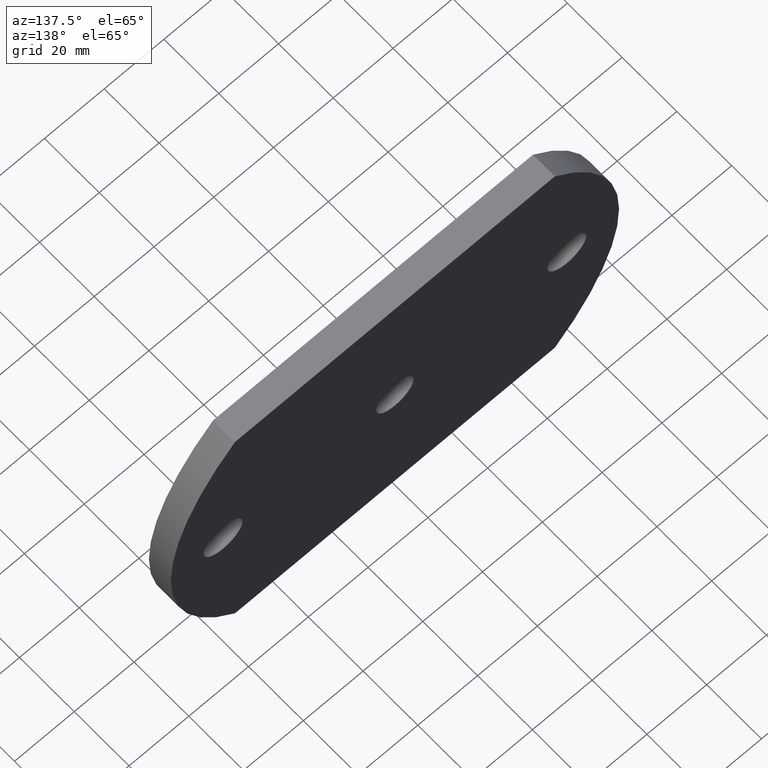
[diagram: clean part render]
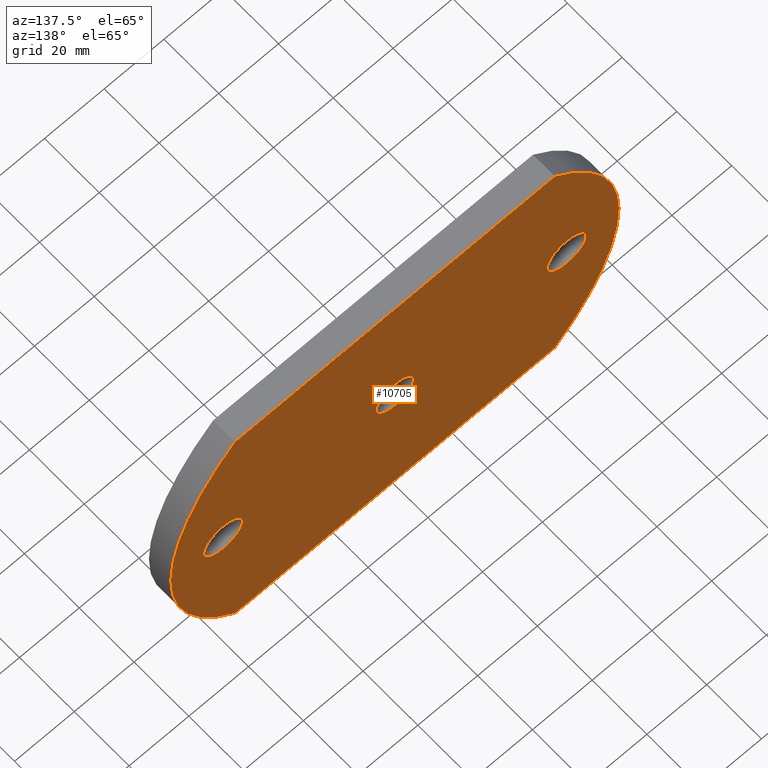
[diagram: same view with one face highlighted and labeled with its STEP entity id]
A machine part, auxiliary view. The second image highlights one B-rep face of the part: STEP entity #10705.
In plain terms, the highlighted planar face has unit normal (0, -1, 0).
Its self-contained STEP definition (entity closure, byte-faithful):
#146 = VERTEX_POINT ( 'NONE', #4804 ) ;
#160 = CARTESIAN_POINT ( 'NONE',  ( -53.49999999999999300, 8.000000000000000000, -50.00000000000001400 ) ) ;
#178 = AXIS2_PLACEMENT_3D ( 'NONE', #9188, #10040, #406 ) ;
#273 = CARTESIAN_POINT ( 'NONE',  ( 57.50000000000000000, 8.000000000000000000, 0.0000000000000000000 ) ) ;
#299 = FACE_BOUND ( 'NONE', #6445, .T. ) ;
#381 = DIRECTION ( 'NONE',  ( 0.0000000000000000000, 1.000000000000000000, 0.0000000000000000000 ) ) ;
#406 = DIRECTION ( 'NONE',  ( 0.0000000000000000000, 0.0000000000000000000, 1.000000000000000000 ) ) ;
#464 = CARTESIAN_POINT ( 'NONE',  ( 6.110465116279065100, 8.000000000000000000, 0.0000000000000000000 ) ) ;
#525 = CARTESIAN_POINT ( 'NONE',  ( -57.50000000000000000, 8.000000000000000000, 6.500000000000000900 ) ) ;
#609 = CARTESIAN_POINT ( 'NONE',  ( -53.50000000000003600, 8.000000000000000000, 49.99999999999998600 ) ) ;
#726 = DIRECTION ( 'NONE',  ( 0.0000000000000000000, 1.000000000000000000, 0.0000000000000000000 ) ) ;
#766 = EDGE_CURVE ( 'NONE', #8371, #11039, #2379, .T. ) ;
#1257 = CIRCLE ( 'NONE', #9519, 6.500000000000000900 ) ;
#1266 = VERTEX_POINT ( 'NONE', #5302 ) ;
#1399 = CIRCLE ( 'NONE', #3678, 6.499999999999994700 ) ;
#2018 = ORIENTED_EDGE ( 'NONE', *, *, #9384, .F. ) ;
#2036 = EDGE_CURVE ( 'NONE', #8347, #5141, #11151, .T. ) ;
#2057 = DIRECTION ( 'NONE',  ( 0.0000000000000000000, 1.000000000000000000, -0.0000000000000000000 ) ) ;
#2203 = ORIENTED_EDGE ( 'NONE', *, *, #10008, .F. ) ;
#2379 = CIRCLE ( 'NONE', #6668, 6.250000000000000000 ) ;
#2984 = DIRECTION ( 'NONE',  ( 0.0000000000000000000, 0.0000000000000000000, -1.000000000000000000 ) ) ;
#3256 = DIRECTION ( 'NONE',  ( 0.0000000000000000000, 1.000000000000000000, 0.0000000000000000000 ) ) ;
#3272 = CARTESIAN_POINT ( 'NONE',  ( -53.49999999999998600, 8.000000000000000000, -50.00000000000003600 ) ) ;
#3365 = DIRECTION ( 'NONE',  ( 0.0000000000000000000, 0.0000000000000000000, 1.000000000000000000 ) ) ;
#3412 = CARTESIAN_POINT ( 'NONE',  ( 57.50000000000000000, 8.000000000000000000, 6.499999999999994700 ) ) ;
#3588 = EDGE_CURVE ( 'NONE', #146, #1266, #5042, .T. ) ;
#3678 = AXIS2_PLACEMENT_3D ( 'NONE', #7876, #6146, #9495 ) ;
#3790 = VECTOR ( 'NONE', #4087, 1000.000000000000000 ) ;
#4087 = DIRECTION ( 'NONE',  ( 1.000000000000000000, 0.0000000000000000000, 2.593979029498029300E-016 ) ) ;
#4132 = EDGE_LOOP ( 'NONE', ( #9412, #7389 ) ) ;
#4294 = ORIENTED_EDGE ( 'NONE', *, *, #7161, .T. ) ;
#4484 = CIRCLE ( 'NONE', #178, 6.250000000000000000 ) ;
#4714 = EDGE_LOOP ( 'NONE', ( #7941, #2203 ) ) ;
#4804 = CARTESIAN_POINT ( 'NONE',  ( 53.49999999999996400, 8.000000000000000000, 50.00000000000001400 ) ) ;
#4973 = EDGE_LOOP ( 'NONE', ( #7069, #8792, #4294, #11118 ) ) ;
#5042 = CIRCLE ( 'NONE', #10292, 68.88953488372092700 ) ;
#5141 = VERTEX_POINT ( 'NONE', #5515 ) ;
#5302 = CARTESIAN_POINT ( 'NONE',  ( 53.50000000000000700, 8.000000000000000000, -49.99999999999998600 ) ) ;
#5459 = VERTEX_POINT ( 'NONE', #7757 ) ;
#5503 = ORIENTED_EDGE ( 'NONE', *, *, #2036, .F. ) ;
#5515 = CARTESIAN_POINT ( 'NONE',  ( 57.50000000000000000, 8.000000000000000000, -6.499999999999994700 ) ) ;
#5632 = DIRECTION ( 'NONE',  ( 0.0000000000000000000, -0.0000000000000000000, -1.000000000000000000 ) ) ;
#5810 = AXIS2_PLACEMENT_3D ( 'NONE', #464, #8190, #5632 ) ;
#5921 = EDGE_CURVE ( 'NONE', #8262, #5459, #7693, .T. ) ;
#5954 = LINE ( 'NONE', #609, #3790 ) ;
#6080 = EDGE_CURVE ( 'NONE', #9162, #146, #5954, .T. ) ;
#6146 = DIRECTION ( 'NONE',  ( 0.0000000000000000000, 1.000000000000000000, 0.0000000000000000000 ) ) ;
#6192 = VERTEX_POINT ( 'NONE', #3272 ) ;
#6331 = CARTESIAN_POINT ( 'NONE',  ( -6.110465116279051800, 8.000000000000000000, 0.0000000000000000000 ) ) ;
#6445 = EDGE_LOOP ( 'NONE', ( #5503, #2018 ) ) ;
#6452 = PLANE ( 'NONE',  #5810 ) ;
#6493 = FACE_OUTER_BOUND ( 'NONE', #4973, .T. ) ;
#6520 = AXIS2_PLACEMENT_3D ( 'NONE', #273, #9750, #10626 ) ;
#6614 = FACE_BOUND ( 'NONE', #4714, .T. ) ;
#6668 = AXIS2_PLACEMENT_3D ( 'NONE', #7658, #726, #3365 ) ;
#7069 = ORIENTED_EDGE ( 'NONE', *, *, #3588, .T. ) ;
#7161 = EDGE_CURVE ( 'NONE', #6192, #9162, #7354, .T. ) ;
#7354 = CIRCLE ( 'NONE', #9020, 68.88953488372095500 ) ;
#7389 = ORIENTED_EDGE ( 'NONE', *, *, #766, .F. ) ;
#7396 = CARTESIAN_POINT ( 'NONE',  ( -53.50000000000003600, 8.000000000000000000, 49.99999999999998600 ) ) ;
#7488 = AXIS2_PLACEMENT_3D ( 'NONE', #8998, #8927, #9840 ) ;
#7527 = DIRECTION ( 'NONE',  ( 0.0000000000000000000, 0.0000000000000000000, 1.000000000000000000 ) ) ;
#7658 = CARTESIAN_POINT ( 'NONE',  ( 0.0000000000000000000, 8.000000000000000000, 0.0000000000000000000 ) ) ;
#7693 = CIRCLE ( 'NONE', #7488, 6.500000000000000900 ) ;
#7757 = CARTESIAN_POINT ( 'NONE',  ( -57.50000000000000000, 8.000000000000000000, -6.500000000000000900 ) ) ;
#7876 = CARTESIAN_POINT ( 'NONE',  ( 57.50000000000000000, 8.000000000000000000, 0.0000000000000000000 ) ) ;
#7941 = ORIENTED_EDGE ( 'NONE', *, *, #5921, .F. ) ;
#8165 = EDGE_CURVE ( 'NONE', #1266, #6192, #10188, .T. ) ;
#8190 = DIRECTION ( 'NONE',  ( 0.0000000000000000000, -1.000000000000000000, 0.0000000000000000000 ) ) ;
#8262 = VERTEX_POINT ( 'NONE', #525 ) ;
#8347 = VERTEX_POINT ( 'NONE', #3412 ) ;
#8371 = VERTEX_POINT ( 'NONE', #9447 ) ;
#8443 = CARTESIAN_POINT ( 'NONE',  ( -57.50000000000000000, 8.000000000000000000, 0.0000000000000000000 ) ) ;
#8458 = VECTOR ( 'NONE', #10703, 1000.000000000000000 ) ;
#8792 = ORIENTED_EDGE ( 'NONE', *, *, #8165, .T. ) ;
#8927 = DIRECTION ( 'NONE',  ( 0.0000000000000000000, 1.000000000000000000, 0.0000000000000000000 ) ) ;
#8998 = CARTESIAN_POINT ( 'NONE',  ( -57.50000000000000000, 8.000000000000000000, 0.0000000000000000000 ) ) ;
#9020 = AXIS2_PLACEMENT_3D ( 'NONE', #6331, #381, #9866 ) ;
#9162 = VERTEX_POINT ( 'NONE', #7396 ) ;
#9188 = CARTESIAN_POINT ( 'NONE',  ( 0.0000000000000000000, 8.000000000000000000, 0.0000000000000000000 ) ) ;
#9384 = EDGE_CURVE ( 'NONE', #5141, #8347, #1399, .T. ) ;
#9412 = ORIENTED_EDGE ( 'NONE', *, *, #10924, .F. ) ;
#9447 = CARTESIAN_POINT ( 'NONE',  ( 7.654042494670957600E-016, 8.000000000000000000, -6.250000000000000000 ) ) ;
#9495 = DIRECTION ( 'NONE',  ( 0.0000000000000000000, 0.0000000000000000000, 1.000000000000000000 ) ) ;
#9519 = AXIS2_PLACEMENT_3D ( 'NONE', #8443, #3256, #7527 ) ;
#9750 = DIRECTION ( 'NONE',  ( 0.0000000000000000000, 1.000000000000000000, 0.0000000000000000000 ) ) ;
#9840 = DIRECTION ( 'NONE',  ( 0.0000000000000000000, 0.0000000000000000000, 1.000000000000000000 ) ) ;
#9866 = DIRECTION ( 'NONE',  ( 0.0000000000000000000, 0.0000000000000000000, 1.000000000000000000 ) ) ;
#9932 = CARTESIAN_POINT ( 'NONE',  ( 6.110465116279065100, 8.000000000000000000, 0.0000000000000000000 ) ) ;
#10008 = EDGE_CURVE ( 'NONE', #5459, #8262, #1257, .T. ) ;
#10040 = DIRECTION ( 'NONE',  ( 0.0000000000000000000, 1.000000000000000000, 0.0000000000000000000 ) ) ;
#10188 = LINE ( 'NONE', #160, #8458 ) ;
#10292 = AXIS2_PLACEMENT_3D ( 'NONE', #9932, #2057, #2984 ) ;
#10626 = DIRECTION ( 'NONE',  ( 0.0000000000000000000, 0.0000000000000000000, 1.000000000000000000 ) ) ;
#10703 = DIRECTION ( 'NONE',  ( -1.000000000000000000, -0.0000000000000000000, -2.593979029498029300E-016 ) ) ;
#10705 = ADVANCED_FACE ( 'NONE', ( #299, #6614, #11089, #6493 ), #6452, .F. ) ;
#10915 = CARTESIAN_POINT ( 'NONE',  ( 0.0000000000000000000, 8.000000000000000000, 6.250000000000000000 ) ) ;
#10924 = EDGE_CURVE ( 'NONE', #11039, #8371, #4484, .T. ) ;
#11039 = VERTEX_POINT ( 'NONE', #10915 ) ;
#11089 = FACE_BOUND ( 'NONE', #4132, .T. ) ;
#11118 = ORIENTED_EDGE ( 'NONE', *, *, #6080, .T. ) ;
#11151 = CIRCLE ( 'NONE', #6520, 6.499999999999994700 ) ;